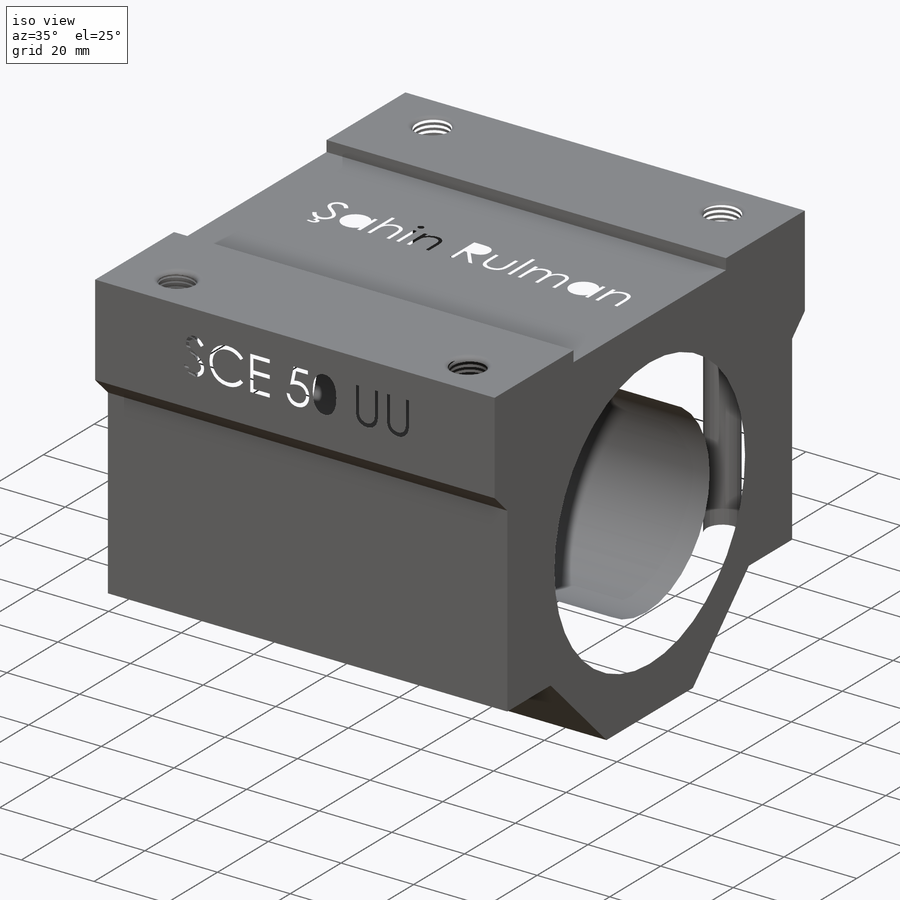
[diagram: iso view]
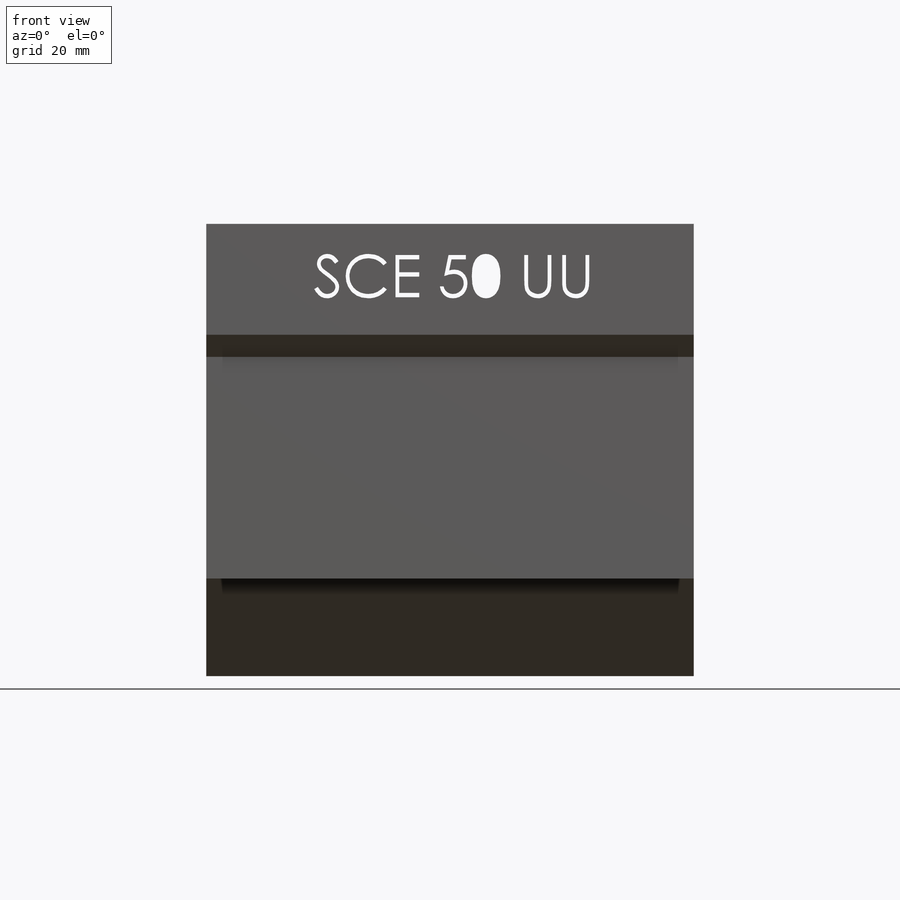
[diagram: front view]
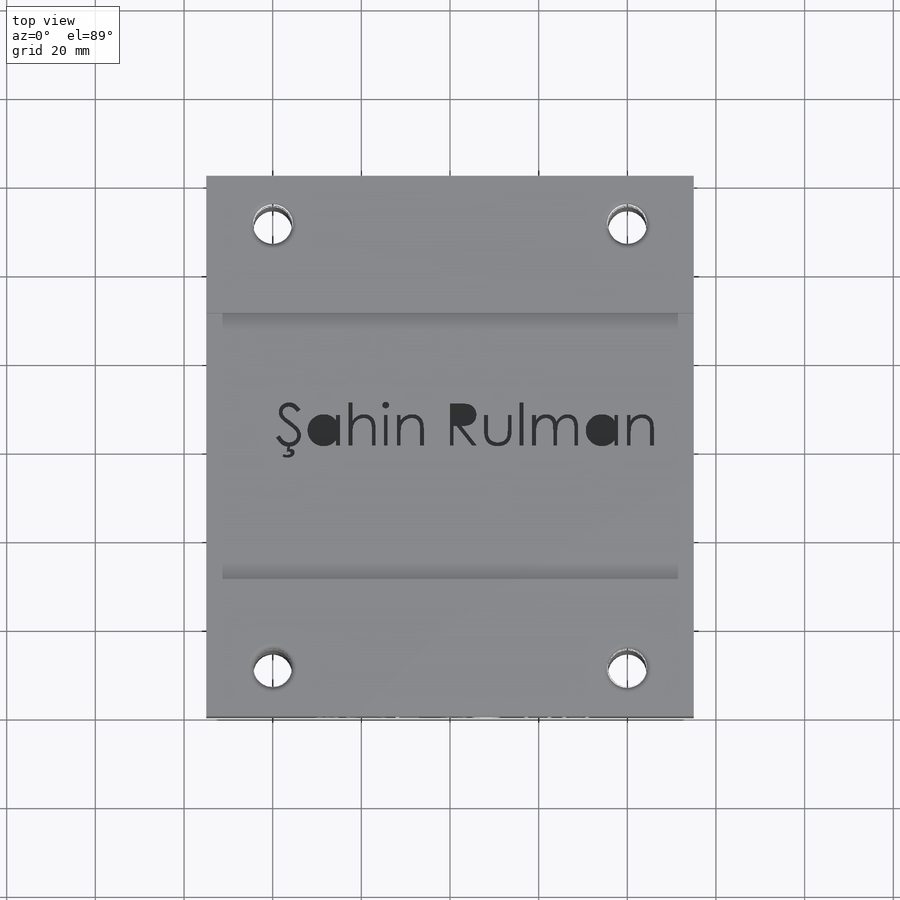
[diagram: top view]
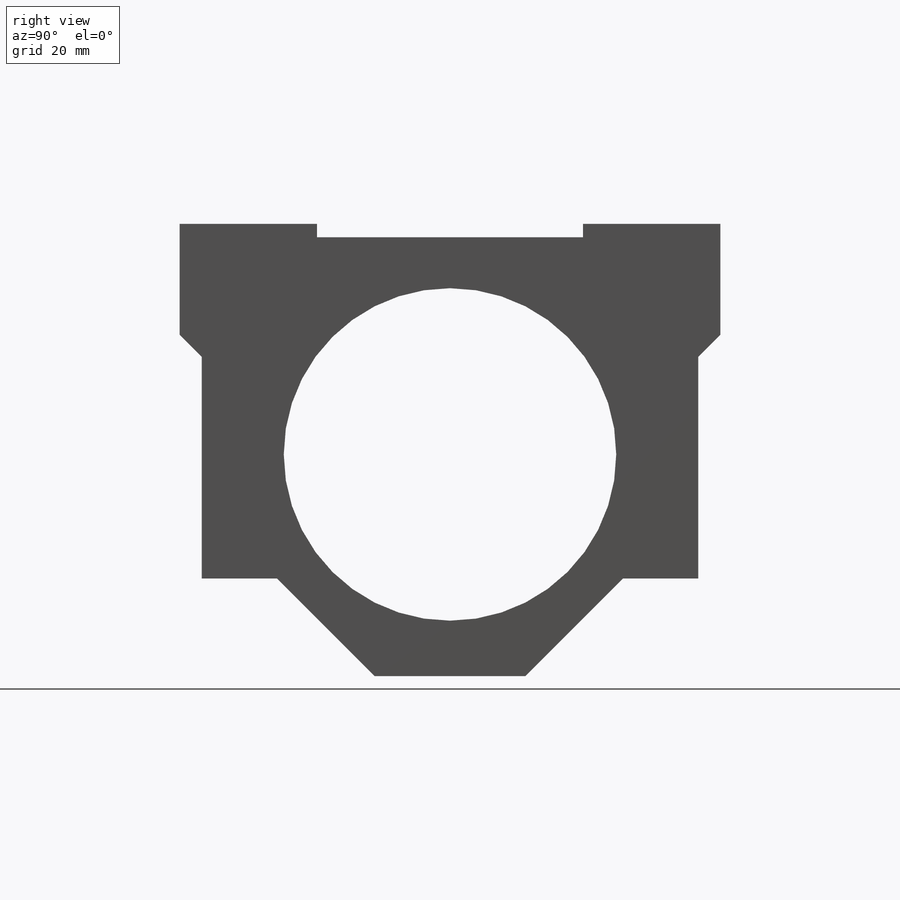
[diagram: right view]
SOLIDWORKS PART (.sldprt)
format: sldprt  version: not decoded by parser v0  size: 1,986,560 bytes
history: native  units: mm
features: sketch x7, cut_extrude x4, mirror x3, material x1, extrude x1, fillet x1, helix x1, plane x1, sweep x1 (+11 scaffold rows collapsed)
feature tree (31):
  scaffold x11  (default folders/planes/origin — collapsed)
  material  "Material <not specified>"
  sketch  "Sketch1"  dims[D10=50.0mm D1=122.0mm D2=61.0mm D3=102.0mm D4=80.0mm D5=25.0mm D6=5.0mm D7=5.0mm D8=17.0mm D9=52.0mm D13=3.0mm D11=30.0mm D12=30.0mm]
  extrude  "Boss-Extrude1"  Depth=110mm
  sketch  "Sketch2"  dims[D5=8.7mm D1=50.0mm D2=50.0mm D3=40.0mm D4=40.0mm]
  cut_extrude  "Cut-Extrude1"  [1 undecoded]
  fillet  "Fillet1"  Radius=1.3mm
  sketch  "Sketch3"
  helix  "Helix/Spiral1"  Pitch=25mm
  plane  "Plane1"
  sketch  "Sketch4"  dims[D1=0.65mm]
  sweep  "Cut-Sweep1"
  mirror  "Mirror1"
  mirror  "Mirror2"
  sketch  "Sketch5"
  cut_extrude  "Cut-Extrude2"  Depth=2mm
  sketch  "Sketch6"
  cut_extrude  "Cut-Extrude3"  Depth=2mm
  sketch  "Sketch7"  dims[D1=75.0mm]
  cut_extrude  "Cut-Extrude4"  Depth=1mm
  mirror  "Mirror3"
decode coverage: 10 of 18 modeling features carry decoded parameters
note: 1 parameter value undecoded
note: suppression state not decoded; provenance and decode notes live in map.json
